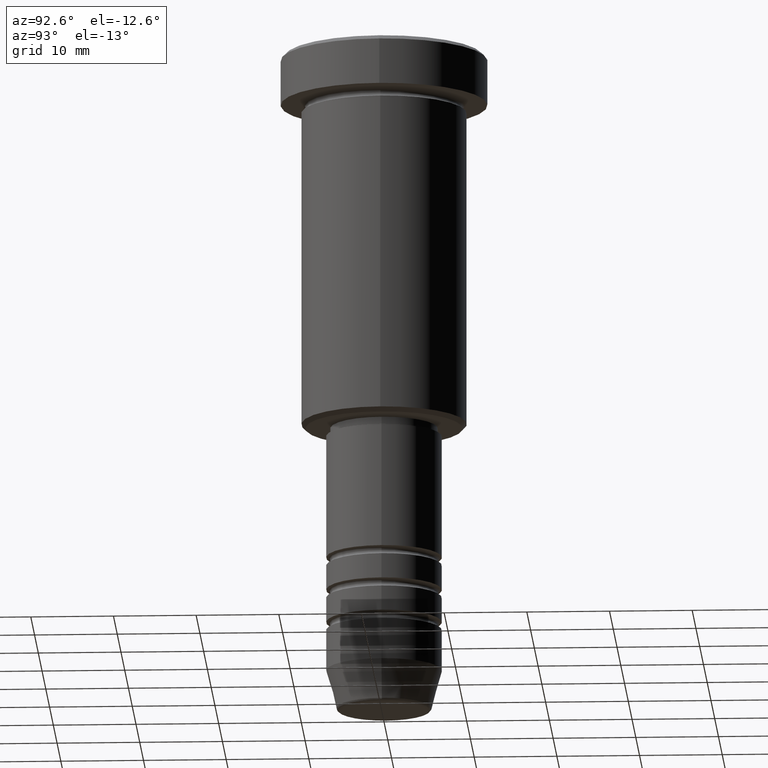
[diagram: clean part render]
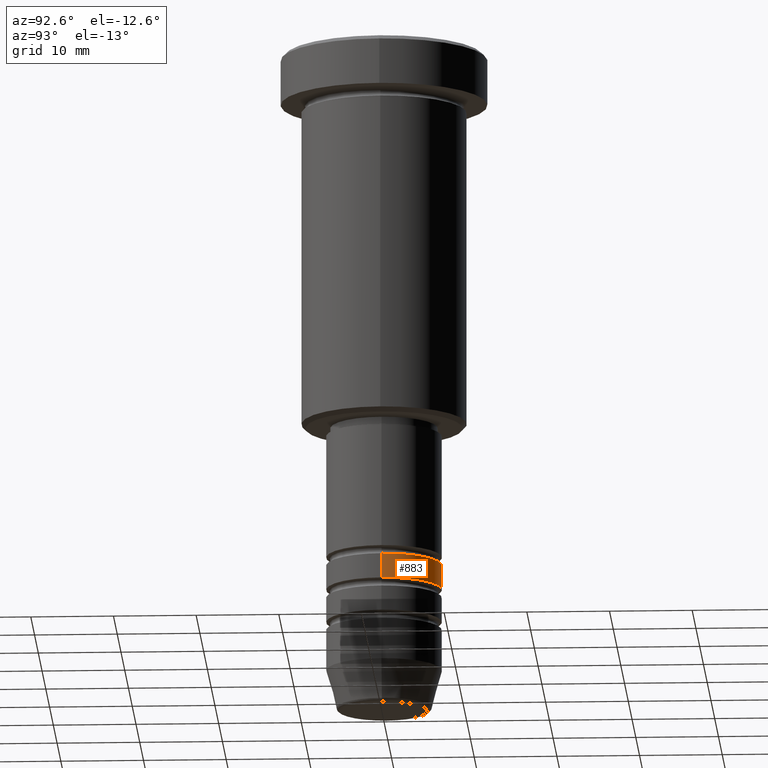
[diagram: same view with one face highlighted and labeled with its STEP entity id]
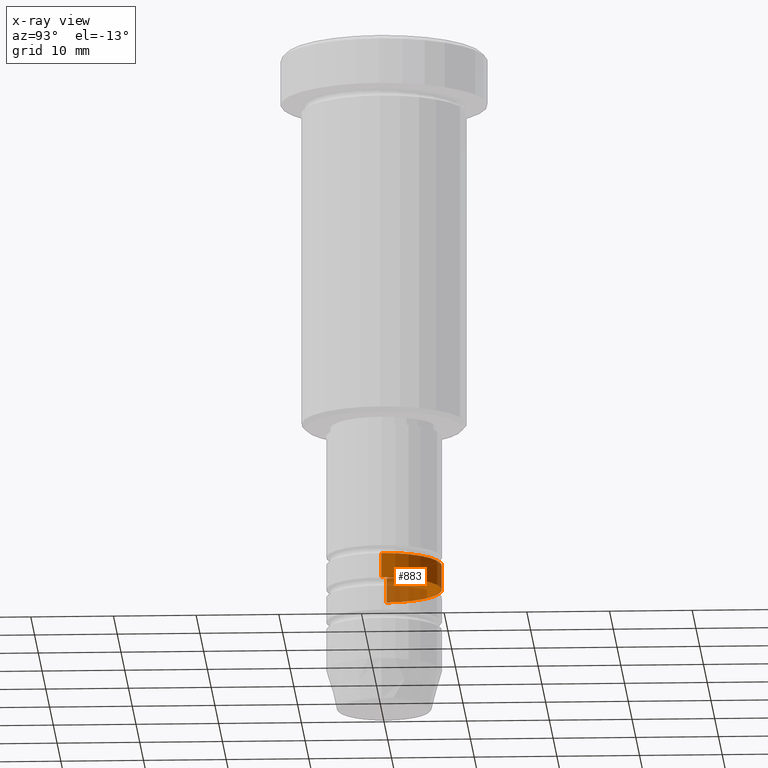
[diagram: x-ray of the same camera — body ghosted, the highlighted face saturated]
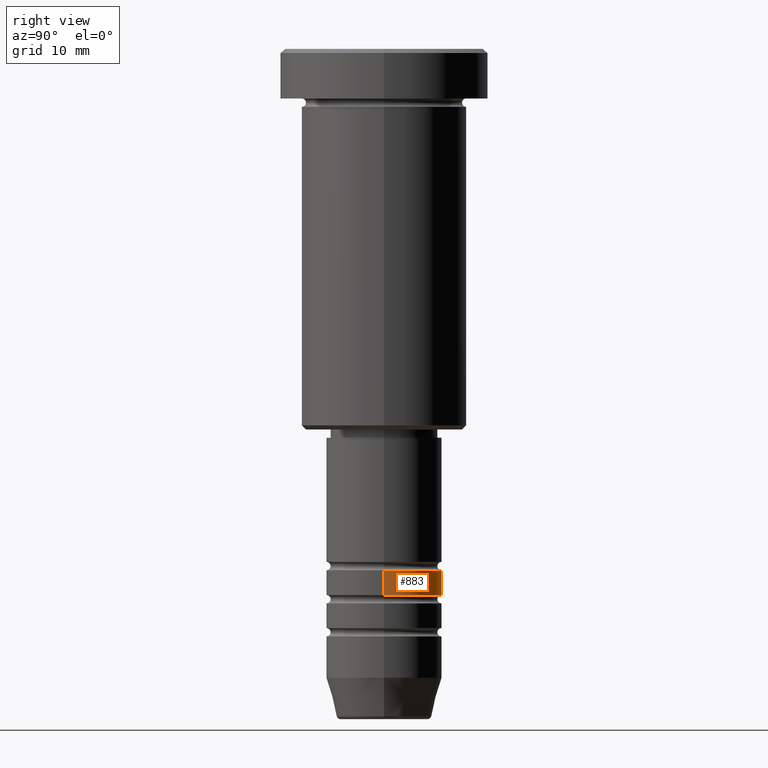
[diagram: same view with one face highlighted and labeled with its STEP entity id]
A machine part, auxiliary view. The second image highlights one B-rep face of the part: STEP entity #883.
The next image is the same camera in x-ray: the body ghosted, the highlighted face saturated — about 35% of this face is hidden behind the body in this view.
A second angle (right view) of the same face is appended — the face is thin or edge-on in the first view.
In plain terms, the highlighted cylindrical surface (partial cylindrical patch) has radius 7 mm, axis along (-0, -0, 1).
Its self-contained STEP definition (entity closure, byte-faithful):
#48 = FACE_OUTER_BOUND ( 'NONE', #1018, .T. ) ;
#54 = CYLINDRICAL_SURFACE ( 'NONE', #500, 7.000000000000000888 ) ;
#92 = DIRECTION ( 'NONE',  ( -0.000000000000000000, -0.000000000000000000, 1.000000000000000000 ) ) ;
#120 = EDGE_CURVE ( 'NONE', #628, #595, #805, .T. ) ;
#204 = DIRECTION ( 'NONE',  ( -0.000000000000000000, -0.000000000000000000, 1.000000000000000000 ) ) ;
#219 = CARTESIAN_POINT ( 'NONE',  ( -7.000000000000002665, 8.572527594031475162E-16, -65.99999999999991473 ) ) ;
#278 = DIRECTION ( 'NONE',  ( -0.000000000000000000, -0.000000000000000000, 1.000000000000000000 ) ) ;
#346 = AXIS2_PLACEMENT_3D ( 'NONE', #436, #278, #803 ) ;
#353 = CARTESIAN_POINT ( 'NONE',  ( -7.000000000000000888, 8.572527594031474176E-16, 0.000000000000000000 ) ) ;
#381 = VERTEX_POINT ( 'NONE', #219 ) ;
#436 = CARTESIAN_POINT ( 'NONE',  ( 0.000000000000000000, 0.000000000000000000, -65.99999999999991473 ) ) ;
#440 = CARTESIAN_POINT ( 'NONE',  ( 0.000000000000000000, 0.000000000000000000, -62.99999999999990052 ) ) ;
#486 = LINE ( 'NONE', #759, #791 ) ;
#500 = AXIS2_PLACEMENT_3D ( 'NONE', #1131, #686, #1044 ) ;
#504 = ORIENTED_EDGE ( 'NONE', *, *, #760, .F. ) ;
#595 = VERTEX_POINT ( 'NONE', #797 ) ;
#612 = ORIENTED_EDGE ( 'NONE', *, *, #911, .T. ) ;
#626 = CARTESIAN_POINT ( 'NONE',  ( 7.000000000000000000, 0.000000000000000000, -62.99999999999990052 ) ) ;
#628 = VERTEX_POINT ( 'NONE', #626 ) ;
#686 = DIRECTION ( 'NONE',  ( -0.000000000000000000, -0.000000000000000000, 1.000000000000000000 ) ) ;
#694 = CARTESIAN_POINT ( 'NONE',  ( 7.000000000000002665, 0.000000000000000000, -65.99999999999991473 ) ) ;
#720 = DIRECTION ( 'NONE',  ( -0.000000000000000000, -0.000000000000000000, 1.000000000000000000 ) ) ;
#759 = CARTESIAN_POINT ( 'NONE',  ( 7.000000000000000888, 0.000000000000000000, 0.000000000000000000 ) ) ;
#760 = EDGE_CURVE ( 'NONE', #813, #628, #486, .T. ) ;
#791 = VECTOR ( 'NONE', #204, 1000.000000000000000 ) ;
#797 = CARTESIAN_POINT ( 'NONE',  ( -7.000000000000000000, 8.572527594031473190E-16, -62.99999999999990052 ) ) ;
#803 = DIRECTION ( 'NONE',  ( 1.000000000000000000, 0.000000000000000000, 0.000000000000000000 ) ) ;
#805 = CIRCLE ( 'NONE', #1045, 7.000000000000000000 ) ;
#813 = VERTEX_POINT ( 'NONE', #694 ) ;
#862 = CIRCLE ( 'NONE', #346, 7.000000000000002665 ) ;
#883 = ADVANCED_FACE ( 'NONE', ( #48 ), #54, .T. ) ;
#893 = DIRECTION ( 'NONE',  ( 1.000000000000000000, 0.000000000000000000, 0.000000000000000000 ) ) ;
#911 = EDGE_CURVE ( 'NONE', #381, #595, #1174, .T. ) ;
#938 = VECTOR ( 'NONE', #92, 1000.000000000000000 ) ;
#1013 = EDGE_CURVE ( 'NONE', #813, #381, #862, .T. ) ;
#1018 = EDGE_LOOP ( 'NONE', ( #1142, #612, #1146, #504 ) ) ;
#1044 = DIRECTION ( 'NONE',  ( 1.000000000000000000, 0.000000000000000000, 0.000000000000000000 ) ) ;
#1045 = AXIS2_PLACEMENT_3D ( 'NONE', #440, #720, #893 ) ;
#1131 = CARTESIAN_POINT ( 'NONE',  ( 0.000000000000000000, 0.000000000000000000, 0.000000000000000000 ) ) ;
#1142 = ORIENTED_EDGE ( 'NONE', *, *, #1013, .T. ) ;
#1146 = ORIENTED_EDGE ( 'NONE', *, *, #120, .F. ) ;
#1174 = LINE ( 'NONE', #353, #938 ) ;